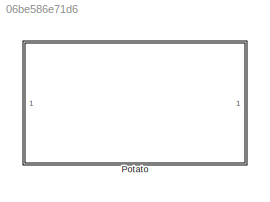
MODEL slx_06be586e71d6
KIND model
CONFIG AbsTol = auto
CONFIG EnableMultiTasking = off
CONFIG FixedStep = auto
CONFIG MaxStep = auto
CONFIG MinStep = auto
CONFIG RelTol = 1e-3
CONFIG SampleTimeConstraint = Unconstrained
CONFIG SolverName = VariableStepAuto
CONFIG StartTime = 0.0
CONFIG StopTime = 10.0
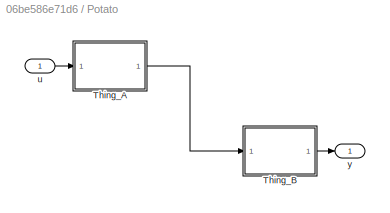
BLOCK [SubSystem] Potato
  Ports = [1, 1]
  RequestExecContextInheritance = off
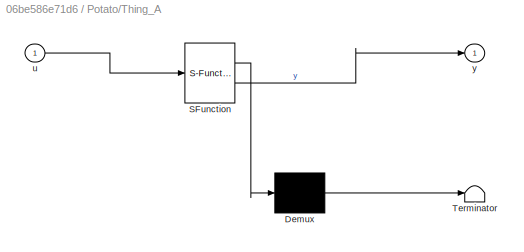
BLOCK [SubSystem] Potato/Thing_A
  ErrorFcn = Stateflow.Translate.translate
  PermitHierarchicalResolution = ExplicitOnly
  Ports = [1, 1]
  RequestExecContextInheritance = off
  SFBlockType = MATLAB Function
  TreatAsAtomicUnit = on
BLOCK [Demux] Potato/Thing_A/ Demux 
  Outputs = 1
  Ports = [1, 1]
BLOCK [S-Function] Potato/Thing_A/ SFunction 
  EnableBusSupport = off
  FunctionName = sf_sfun
  PortCounts = [1 2]
  Ports = [1, 2]
  SFcnIsStateOwnerBlock = off
  SFunctionDeploymentMode = off
  Tag = Stateflow S-Function 2
BLOCK [Terminator] Potato/Thing_A/ Terminator 
BLOCK [Inport] Potato/Thing_A/u
BLOCK [Outport] Potato/Thing_A/y
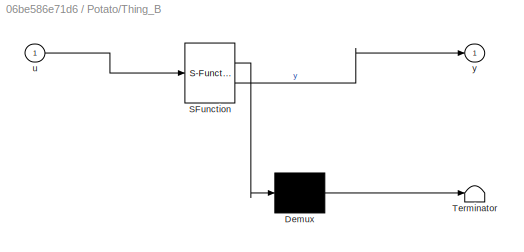
BLOCK [SubSystem] Potato/Thing_B
  ErrorFcn = Stateflow.Translate.translate
  PermitHierarchicalResolution = ExplicitOnly
  Ports = [1, 1]
  RequestExecContextInheritance = off
  SFBlockType = MATLAB Function
  TreatAsAtomicUnit = on
BLOCK [Demux] Potato/Thing_B/ Demux 
  Outputs = 1
  Ports = [1, 1]
BLOCK [S-Function] Potato/Thing_B/ SFunction 
  EnableBusSupport = off
  FunctionName = sf_sfun
  PortCounts = [1 2]
  Ports = [1, 2]
  SFcnIsStateOwnerBlock = off
  SFunctionDeploymentMode = off
  Tag = Stateflow S-Function 1
BLOCK [Terminator] Potato/Thing_B/ Terminator 
BLOCK [Inport] Potato/Thing_B/u
BLOCK [Outport] Potato/Thing_B/y
BLOCK [Inport] Potato/u
BLOCK [Outport] Potato/y
LINE Potato/Thing_A:1 -> Potato/Thing_B:1
LINE Potato/Thing_B:1 -> Potato/y:1
LINE Potato/u:1 -> Potato/Thing_A:1
CHART Potato/Thing_A states=1 transitions=1
  STATE_LABEL 'eML_blk_kernel()'
  STATE_LABEL 'SCRIPT:\nfunction y = fcn(u)\n\ny = u;\n'
CHART Potato/Thing_B states=1 transitions=1
  STATE_LABEL 'eML_blk_kernel()'
  STATE_LABEL 'SCRIPT:\nfunction y = fcn(u)\n%| pragma Tag("foo.bar");\ny = u;\n'
CHART  states=0 transitions=0
CHART  states=0 transitions=0
